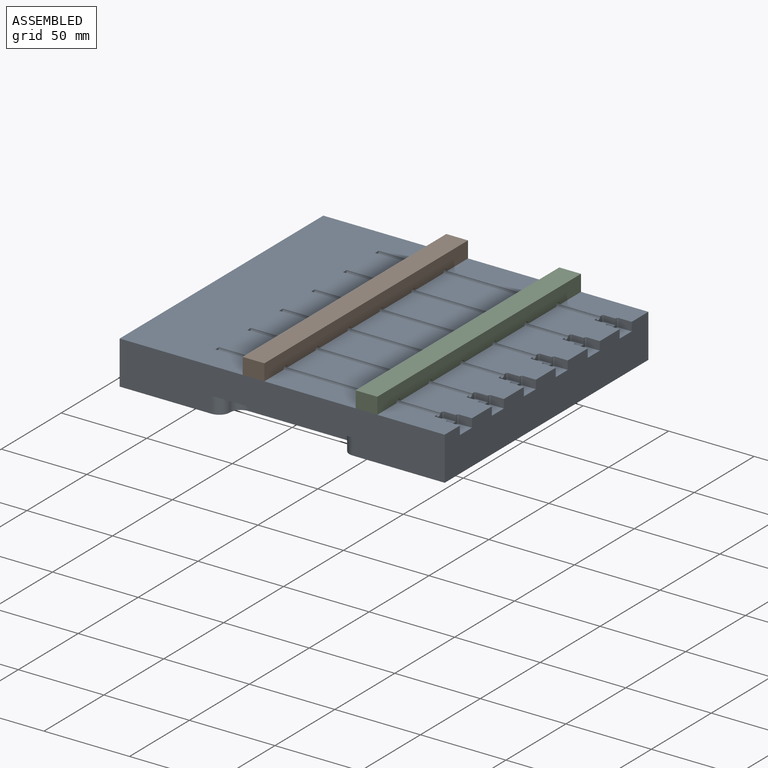
[diagram: assembled view]
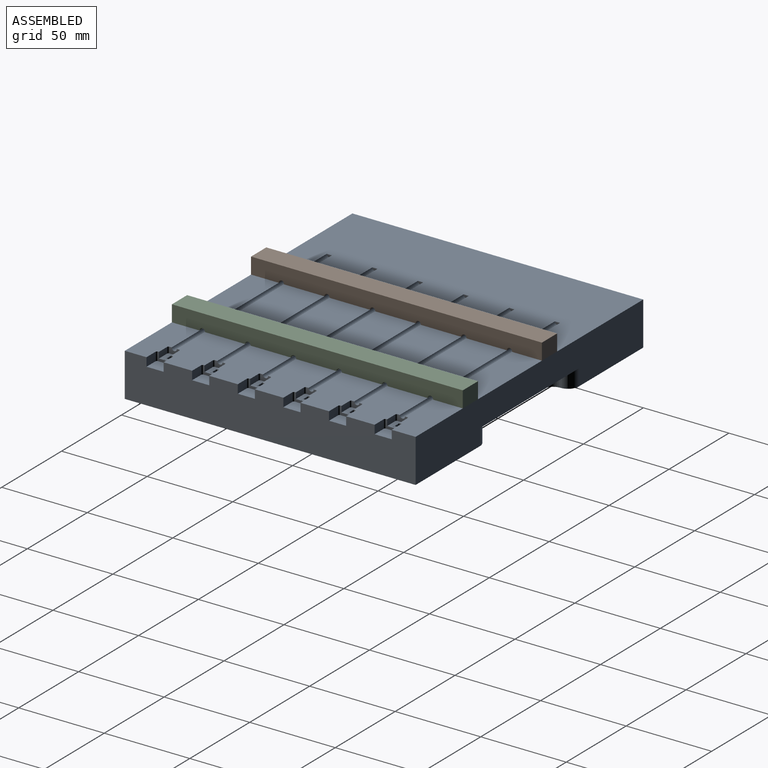
[diagram: assembled view, second angle]
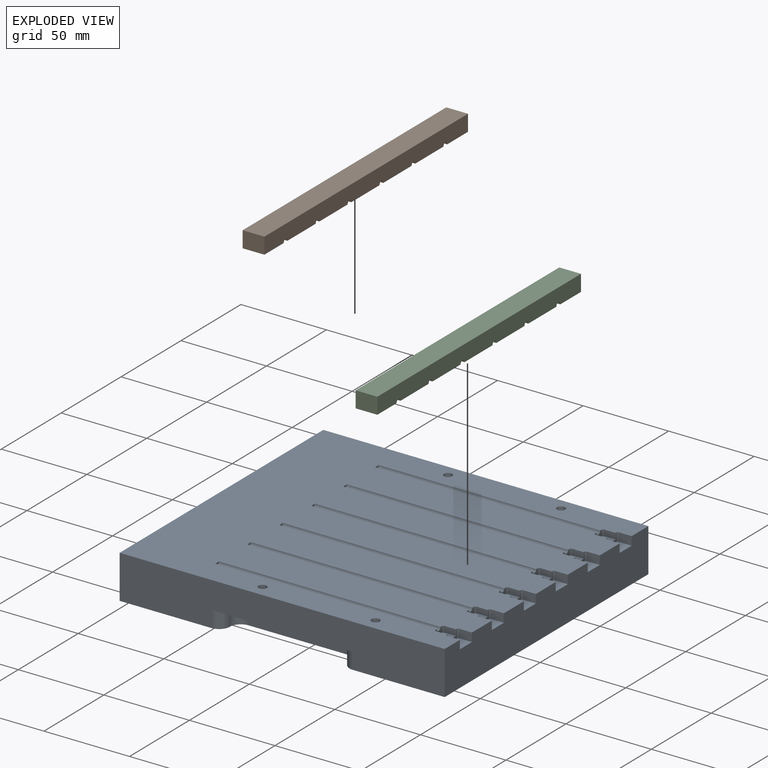
[diagram: exploded view]
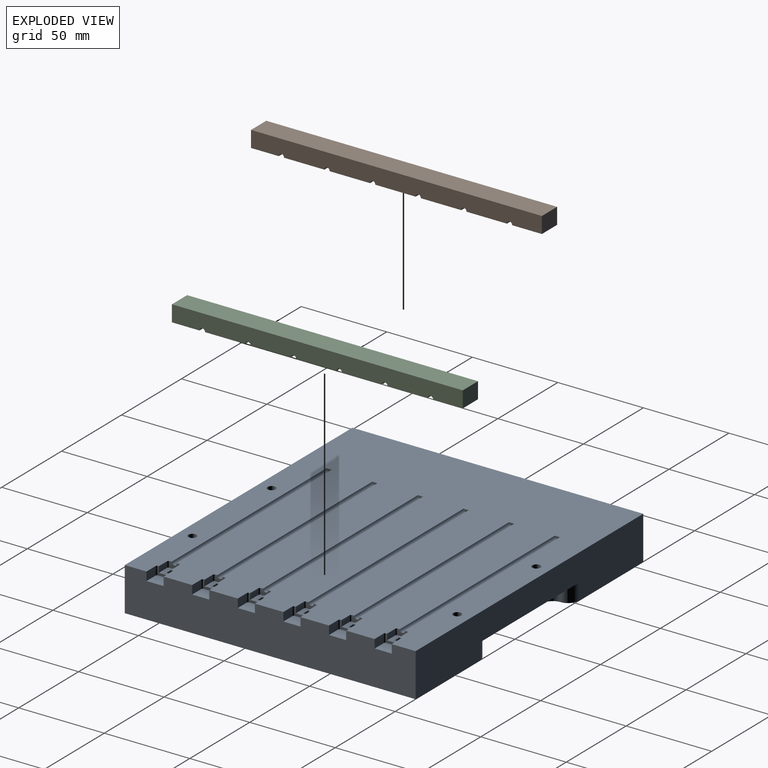
[diagram: exploded view, second angle]
ASSEMBLY  parts=3 mates=2
PART A: 190 faces, bbox 190x25.4x170 mm
  f0: plane 170x25.4mm, normal (1,0,0), area 4016mm2, adj f2,f3,f29,f30,f92,f93,f94,f115
  f1: plane 8.45x5.02mm, normal (1,0,0), area 17mm2, adj f10,f30,f60,f62,f92,f95,f96,f97
  f2: plane 190x25.4mm, normal (0,0,1), area 4039.7mm2, adj f0,f3,f28,f30,f81,f84,f87
  f3: plane 190x170mm, normal (0,1,0), area 30412.7mm2, adj f0,f2,f28,f29,f72,f74,f76,f78
  f4: plane 3.02x1.51mm, normal (1,0,0), area 3.6mm2, adj f30,f70
  f5: plane 3.02x1.51mm, normal (1,0,0), area 3.6mm2, adj f30,f71
  f6: plane 3.02x1.51mm, normal (1,0,0), area 3.6mm2, adj f30,f69
  f7: plane 3.02x1.51mm, normal (1,0,0), area 3.6mm2, adj f30,f68
  f8: plane 3.02x1.51mm, normal (1,0,0), area 3.6mm2, adj f30,f67
  f9: plane 3.02x1.51mm, normal (1,0,0), area 3.6mm2, adj f30,f65
  f10: plane 2.58x1.27mm, normal (0,-1,0), area 2.8mm2, adj f1,f60,f61,f62,f103,f104
  f11: plane 2.33x1.27mm, normal (0,-1,0), area 2.5mm2, adj f23,f60,f62,f63,f105,f106
  f12: plane 2.58x1.27mm, normal (0,-1,0), area 2.8mm2, adj f36,f55,f56,f57,f182,f183
  f13: plane 2.33x1.27mm, normal (0,-1,0), area 2.5mm2, adj f24,f55,f57,f58,f184,f185
  f14: plane 2.58x1.27mm, normal (0,-1,0), area 2.8mm2, adj f37,f50,f51,f52,f178,f179
  f15: plane 2.33x1.27mm, normal (0,-1,0), area 2.5mm2, adj f25,f50,f52,f53,f180,f181
  f16: plane 2.58x1.27mm, normal (0,-1,0), area 2.8mm2, adj f38,f45,f46,f47,f176,f177
  f17: plane 2.33x1.27mm, normal (0,-1,0), area 2.5mm2, adj f26,f45,f47,f48,f174,f175
  f18: plane 2.58x1.27mm, normal (0,-1,0), area 2.8mm2, adj f39,f40,f41,f42,f170,f171
  f19: plane 2.33x1.27mm, normal (0,-1,0), area 2.5mm2, adj f27,f40,f42,f43,f172,f173
  f20: plane 2.58x1.27mm, normal (0,-1,0), area 2.8mm2, adj f22,f31,f32,f33,f188,f189
  f21: plane 2.33x1.27mm, normal (0,-1,0), area 2.5mm2, adj f31,f33,f34,f66,f186,f187
  f22: plane 8.45x5.02mm, normal (1,0,0), area 17mm2, adj f20,f30,f31,f33,f115,f130,f135,f148
  f23: plane 5.65x3.56mm, normal (1,0,0), area 16.3mm2, adj f11,f30,f60,f62,f71,f96,f97,f99
  f24: plane 5.65x3.56mm, normal (1,0,0), area 16.3mm2, adj f13,f30,f55,f57,f70,f146,f156,f164
  f25: plane 5.65x3.56mm, normal (1,0,0), area 16.3mm2, adj f15,f30,f50,f52,f69,f144,f154,f163
  f26: plane 5.65x3.56mm, normal (1,0,0), area 16.3mm2, adj f17,f30,f45,f47,f68,f142,f152,f162
  f27: plane 5.65x3.56mm, normal (1,0,0), area 16.3mm2, adj f19,f30,f40,f42,f67,f140,f151,f161
  f28: plane 170x25.4mm, normal (-1,0,0), area 4318mm2, adj f2,f3,f29,f30
  f29: plane 190x25.4mm, normal (0,0,-1), area 4039.7mm2, adj f0,f3,f28,f30,f83,f89,f90
  f30: plane 190x170mm, normal (0,-1,0), area 29049.5mm2, adj f0,f1,f2,f4,f5,f6,f7,f8
  f31: plane 7.62x3.1mm, normal (0,0,1), area 8.7mm2, adj f20,f21,f22,f35,f66,f148,f186,f189
  f32: plane 3.05x0.48mm, normal (-1,0,0), area 1.5mm2, adj f20,f35,f188,f189
  f33: plane 7.62x3.1mm, normal (0,0,-1), area 8.7mm2, adj f20,f21,f22,f35,f66,f159,f187,f188
  f34: plane 3.05x0.48mm, normal (1,0,0), area 1.5mm2, adj f21,f35,f186,f187
  f35: plane 3.51x1.27mm, normal (0,-1,0), area 4.3mm2, adj f31,f32,f33,f34,f186,f187,f188,f189
  f36: plane 8.45x5.02mm, normal (1,0,0), area 17mm2, adj f12,f30,f55,f57,f123,f134,f139,f146
  f37: plane 8.45x5.02mm, normal (1,0,0), area 17mm2, adj f14,f30,f50,f52,f121,f133,f138,f144
  f38: plane 8.45x5.02mm, normal (1,0,0), area 17mm2, adj f16,f30,f45,f47,f119,f132,f137,f142
  f39: plane 8.45x5.02mm, normal (1,0,0), area 17mm2, adj f18,f30,f40,f42,f117,f131,f136,f140
  f40: plane 7.62x3.1mm, normal (0,0,1), area 8.7mm2, adj f18,f19,f27,f39,f44,f140,f170,f173
  f41: plane 3.05x0.48mm, normal (-1,0,0), area 1.5mm2, adj f18,f44,f170,f171
  f42: plane 7.62x3.1mm, normal (0,0,-1), area 8.7mm2, adj f18,f19,f27,f39,f44,f151,f171,f172
  f43: plane 3.05x0.48mm, normal (1,0,0), area 1.5mm2, adj f19,f44,f172,f173
  f44: plane 3.51x1.27mm, normal (0,-1,0), area 4.3mm2, adj f40,f41,f42,f43,f170,f171,f172,f173
  f45: plane 7.62x3.1mm, normal (0,0,1), area 8.7mm2, adj f16,f17,f26,f38,f49,f142,f174,f177
  f46: plane 3.05x0.48mm, normal (-1,0,0), area 1.5mm2, adj f16,f49,f176,f177
  f47: plane 7.62x3.1mm, normal (0,0,-1), area 8.7mm2, adj f16,f17,f26,f38,f49,f152,f175,f176
  f48: plane 3.05x0.48mm, normal (1,0,0), area 1.5mm2, adj f17,f49,f174,f175
  f49: plane 3.51x1.27mm, normal (0,-1,0), area 4.3mm2, adj f45,f46,f47,f48,f174,f175,f176,f177
  f50: plane 7.62x3.1mm, normal (0,0,1), area 8.7mm2, adj f14,f15,f25,f37,f54,f144,f178,f181
  f51: plane 3.05x0.48mm, normal (-1,0,0), area 1.5mm2, adj f14,f54,f178,f179
  f52: plane 7.62x3.1mm, normal (0,0,-1), area 8.7mm2, adj f14,f15,f25,f37,f54,f154,f179,f180
  f53: plane 3.05x0.48mm, normal (1,0,0), area 1.5mm2, adj f15,f54,f180,f181
  f54: plane 3.51x1.27mm, normal (0,-1,0), area 4.3mm2, adj f50,f51,f52,f53,f178,f179,f180,f181
  f55: plane 7.62x3.1mm, normal (0,0,1), area 8.7mm2, adj f12,f13,f24,f36,f59,f146,f182,f185
  f56: plane 3.05x0.48mm, normal (-1,0,0), area 1.5mm2, adj f12,f59,f182,f183
  f57: plane 7.62x3.1mm, normal (0,0,-1), area 8.7mm2, adj f12,f13,f24,f36,f59,f156,f183,f184
  f58: plane 3.05x0.48mm, normal (1,0,0), area 1.5mm2, adj f13,f59,f184,f185
  f59: plane 3.51x1.27mm, normal (0,-1,0), area 4.3mm2, adj f55,f56,f57,f58,f182,f183,f184,f185
  f60: plane 7.62x3.1mm, normal (0,0,1), area 8.7mm2, adj f1,f10,f11,f23,f64,f96,f103,f105
  f61: plane 3.05x0.48mm, normal (-1,0,0), area 1.5mm2, adj f10,f64,f103,f104
  f62: plane 7.62x3.1mm, normal (0,0,-1), area 8.7mm2, adj f1,f10,f11,f23,f64,f97,f104,f106
  f63: plane 3.05x0.48mm, normal (1,0,0), area 1.5mm2, adj f11,f64,f105,f106
  f64: plane 3.51x1.27mm, normal (0,-1,0), area 4.3mm2, adj f60,f61,f62,f63,f103,f104,f105,f106
  f65: cylinder r=1.51mm len=129.41mm, axis (1,0,0), area 614.4mm2, adj f9,f30,f66
  f66: plane 5.65x3.56mm, normal (1,0,0), area 16.3mm2, adj f21,f30,f31,f33,f65,f148,f159,f160
  f67: cylinder r=1.51mm len=129.41mm, axis (1,0,0), area 614.4mm2, adj f8,f27,f30
  f68: cylinder r=1.51mm len=129.41mm, axis (1,0,0), area 614.4mm2, adj f7,f26,f30
  f69: cylinder r=1.51mm len=129.41mm, axis (1,0,0), area 614.4mm2, adj f6,f25,f30
  f70: cylinder r=1.51mm len=129.41mm, axis (1,0,0), area 614.4mm2, adj f4,f24,f30
  f71: cylinder r=1.51mm len=129.41mm, axis (1,0,0), area 614.4mm2, adj f5,f23,f30
  f72: cylinder r=3mm len=6mm, axis (0,1,0), area 113.1mm2, adj f3,f73
  f73: plane 6x6mm, normal (0,1,0), area 28.3mm2, adj f72
  f74: cylinder r=3mm len=6mm, axis (0,1,0), area 113.1mm2, adj f3,f75
  f75: plane 6x6mm, normal (0,1,0), area 28.3mm2, adj f74
  f76: cylinder r=3mm len=6mm, axis (0,1,0), area 113.1mm2, adj f3,f77
  f77: plane 6x6mm, normal (0,1,0), area 28.3mm2, adj f76
  f78: cylinder r=3mm len=6mm, axis (0,1,0), area 113.1mm2, adj f3,f79
  f79: plane 6x6mm, normal (0,1,0), area 28.3mm2, adj f78
  f80: plane 57.15x9.53mm, normal (0,0,1), area 544.4mm2, adj f3,f81,f85,f86
  f81: plane 82.55x12.7mm, normal (0,1,0), area 887.1mm2, adj f2,f80,f84,f85,f86,f87
  f82: plane 57.15x9.53mm, normal (0,0,-1), area 544.4mm2, adj f3,f83,f88,f91
  f83: plane 82.55x12.7mm, normal (0,1,0), area 887.1mm2, adj f29,f82,f88,f89,f90,f91
  f84: cylinder r=6.35mm len=9.53mm, axis (0,-1,0), area 95mm2, adj f2,f3,f81,f85
  f85: cylinder r=6.35mm len=9.53mm, axis (0,1,0), area 95mm2, adj f3,f80,f81,f84
  f86: cylinder r=6.35mm len=9.53mm, axis (0,-1,0), area 95mm2, adj f3,f80,f81,f87
  f87: cylinder r=6.35mm len=9.53mm, axis (0,1,0), area 95mm2, adj f2,f3,f81,f86
  f88: cylinder r=6.35mm len=9.53mm, axis (0,1,0), area 95mm2, adj f3,f82,f83,f89
  f89: cylinder r=6.35mm len=9.53mm, axis (0,-1,0), area 95mm2, adj f3,f29,f83,f88
  f90: cylinder r=6.35mm len=9.53mm, axis (0,1,0), area 95mm2, adj f3,f29,f83,f91
  f91: cylinder r=6.35mm len=9.53mm, axis (0,-1,0), area 95mm2, adj f3,f82,f83,f90
  f92: plane 10.03x8.38mm, normal (0,-1,0), area 83.8mm2, adj f0,f1,f93,f94,f101,f102
  f93: plane 7.59x5.02mm, normal (0,0,-1), area 38.1mm2, adj f0,f30,f92,f102
  f94: plane 7.59x5.02mm, normal (0,0,1), area 38.1mm2, adj f0,f30,f92,f101
  f95: plane 6.83x3.5mm, normal (0,0,1), area 23.9mm2, adj f1,f30,f96,f99
  f96: plane 7.62x2.98mm, normal (0,-1,0), area 22.6mm2, adj f1,f23,f60,f95,f99
  f97: plane 7.62x2.98mm, normal (0,-1,0), area 22.6mm2, adj f1,f23,f62,f98,f100
  f98: plane 6.83x3.5mm, normal (0,0,-1), area 23.9mm2, adj f1,f30,f97,f100
  f99: cylinder r=0.79mm len=3.5mm, axis (0,-1,0), area 4.4mm2, adj f23,f30,f95,f96
  f100: cylinder r=0.79mm len=3.5mm, axis (0,1,0), area 4.4mm2, adj f23,f30,f97,f98
  f101: cylinder r=0.79mm len=5.02mm, axis (0,1,0), area 6.3mm2, adj f1,f30,f92,f94
  f102: cylinder r=0.79mm len=5.02mm, axis (0,-1,0), area 6.3mm2, adj f1,f30,f92,f93
  f103: cylinder r=0.4mm len=3.05mm, axis (0,-1,0), area 1.9mm2, adj f10,f60,f61,f64
  f104: cylinder r=0.4mm len=3.05mm, axis (0,-1,0), area 1.9mm2, adj f10,f61,f62,f64
  f105: cylinder r=0.4mm len=3.05mm, axis (0,-1,0), area 1.9mm2, adj f11,f60,f63,f64
  f106: cylinder r=0.4mm len=3.05mm, axis (0,-1,0), area 1.9mm2, adj f11,f62,f63,f64
  f107: cylinder r=2.38mm len=6.35mm, axis (0,-1,0), area 95mm2, adj f30,f108
  f108: plane 4.76x4.76mm, normal (0,-1,0), area 17.8mm2, adj f107
  f109: cylinder r=2.38mm len=6.35mm, axis (0,-1,0), area 95mm2, adj f30,f110
  f110: plane 4.76x4.76mm, normal (0,-1,0), area 17.8mm2, adj f109
  f111: cylinder r=2.38mm len=6.35mm, axis (0,-1,0), area 95mm2, adj f30,f112
  f112: plane 4.76x4.76mm, normal (0,-1,0), area 17.8mm2, adj f111
  f113: cylinder r=2.38mm len=6.35mm, axis (0,-1,0), area 95mm2, adj f30,f114
  f114: plane 4.76x4.76mm, normal (0,-1,0), area 17.8mm2, adj f113
  f115: plane 10.03x8.38mm, normal (0,-1,0), area 83.8mm2, adj f0,f22,f116,f125,f130,f135
  f116: plane 7.59x5.02mm, normal (0,0,1), area 38.1mm2, adj f0,f30,f115,f135
  f117: plane 10.03x8.38mm, normal (0,-1,0), area 83.8mm2, adj f0,f39,f118,f126,f131,f136
  f118: plane 7.59x5.02mm, normal (0,0,1), area 38.1mm2, adj f0,f30,f117,f136
  f119: plane 10.03x8.38mm, normal (0,-1,0), area 83.8mm2, adj f0,f38,f120,f127,f132,f137
  f120: plane 7.59x5.02mm, normal (0,0,1), area 38.1mm2, adj f0,f30,f119,f137
  f121: plane 10.03x8.38mm, normal (0,-1,0), area 83.8mm2, adj f0,f37,f122,f128,f133,f138
  f122: plane 7.59x5.02mm, normal (0,0,1), area 38.1mm2, adj f0,f30,f121,f138
  f123: plane 10.03x8.38mm, normal (0,-1,0), area 83.8mm2, adj f0,f36,f124,f129,f134,f139
  f124: plane 7.59x5.02mm, normal (0,0,1), area 38.1mm2, adj f0,f30,f123,f139
  f125: plane 7.59x5.02mm, normal (0,0,-1), area 38.1mm2, adj f0,f30,f115,f130
  f126: plane 7.59x5.02mm, normal (0,0,-1), area 38.1mm2, adj f0,f30,f117,f131
  f127: plane 7.59x5.02mm, normal (0,0,-1), area 38.1mm2, adj f0,f30,f119,f132
  f128: plane 7.59x5.02mm, normal (0,0,-1), area 38.1mm2, adj f0,f30,f121,f133
  f129: plane 7.59x5.02mm, normal (0,0,-1), area 38.1mm2, adj f0,f30,f123,f134
  f130: cylinder r=0.79mm len=5.02mm, axis (0,1,0), area 6.3mm2, adj f22,f30,f115,f125
  f131: cylinder r=0.79mm len=5.02mm, axis (0,1,0), area 6.3mm2, adj f30,f39,f117,f126
  f132: cylinder r=0.79mm len=5.02mm, axis (0,1,0), area 6.3mm2, adj f30,f38,f119,f127
  f133: cylinder r=0.79mm len=5.02mm, axis (0,1,0), area 6.3mm2, adj f30,f37,f121,f128
  f134: cylinder r=0.79mm len=5.02mm, axis (0,1,0), area 6.3mm2, adj f30,f36,f123,f129
  f135: cylinder r=0.79mm len=5.02mm, axis (0,-1,0), area 6.3mm2, adj f22,f30,f115,f116
  f136: cylinder r=0.79mm len=5.02mm, axis (0,-1,0), area 6.3mm2, adj f30,f39,f117,f118
  f137: cylinder r=0.79mm len=5.02mm, axis (0,-1,0), area 6.3mm2, adj f30,f38,f119,f120
  f138: cylinder r=0.79mm len=5.02mm, axis (0,-1,0), area 6.3mm2, adj f30,f37,f121,f122
  f139: cylinder r=0.79mm len=5.02mm, axis (0,-1,0), area 6.3mm2, adj f30,f36,f123,f124
  f140: plane 7.62x2.98mm, normal (0,-1,0), area 22.6mm2, adj f27,f39,f40,f141,f166
  f141: plane 6.83x3.5mm, normal (0,0,1), area 23.9mm2, adj f30,f39,f140,f166
  f142: plane 7.62x2.98mm, normal (0,-1,0), area 22.6mm2, adj f26,f38,f45,f143,f167
  f143: plane 6.83x3.5mm, normal (0,0,1), area 23.9mm2, adj f30,f38,f142,f167
  f144: plane 7.62x2.98mm, normal (0,-1,0), area 22.6mm2, adj f25,f37,f50,f145,f168
  f145: plane 6.83x3.5mm, normal (0,0,1), area 23.9mm2, adj f30,f37,f144,f168
  f146: plane 7.62x2.98mm, normal (0,-1,0), area 22.6mm2, adj f24,f36,f55,f147,f169
  f147: plane 6.83x3.5mm, normal (0,0,1), area 23.9mm2, adj f30,f36,f146,f169
  f148: plane 7.62x2.98mm, normal (0,-1,0), area 22.6mm2, adj f22,f31,f66,f149,f165
  f149: plane 6.83x3.5mm, normal (0,0,1), area 23.9mm2, adj f22,f30,f148,f165
  f150: plane 6.83x3.5mm, normal (0,0,-1), area 23.9mm2, adj f30,f39,f151,f161
  f151: plane 7.62x2.98mm, normal (0,-1,0), area 22.6mm2, adj f27,f39,f42,f150,f161
  f152: plane 7.62x2.98mm, normal (0,-1,0), area 22.6mm2, adj f26,f38,f47,f153,f162
  f153: plane 6.83x3.5mm, normal (0,0,-1), area 23.9mm2, adj f30,f38,f152,f162
  f154: plane 7.62x2.98mm, normal (0,-1,0), area 22.6mm2, adj f25,f37,f52,f155,f163
  f155: plane 6.83x3.5mm, normal (0,0,-1), area 23.9mm2, adj f30,f37,f154,f163
  f156: plane 7.62x2.98mm, normal (0,-1,0), area 22.6mm2, adj f24,f36,f57,f157,f164
  f157: plane 6.83x3.5mm, normal (0,0,-1), area 23.9mm2, adj f30,f36,f156,f164
  f158: plane 6.83x3.5mm, normal (0,0,-1), area 23.9mm2, adj f22,f30,f159,f160
  f159: plane 7.62x2.98mm, normal (0,-1,0), area 22.6mm2, adj f22,f33,f66,f158,f160
  f160: cylinder r=0.79mm len=3.5mm, axis (0,-1,0), area 4.4mm2, adj f30,f66,f158,f159
  f161: cylinder r=0.79mm len=3.5mm, axis (0,-1,0), area 4.4mm2, adj f27,f30,f150,f151
  f162: cylinder r=0.79mm len=3.5mm, axis (0,-1,0), area 4.4mm2, adj f26,f30,f152,f153
  f163: cylinder r=0.79mm len=3.5mm, axis (0,-1,0), area 4.4mm2, adj f25,f30,f154,f155
  f164: cylinder r=0.79mm len=3.5mm, axis (0,-1,0), area 4.4mm2, adj f24,f30,f156,f157
  f165: cylinder r=0.79mm len=3.5mm, axis (0,1,0), area 4.4mm2, adj f30,f66,f148,f149
  f166: cylinder r=0.79mm len=3.5mm, axis (0,1,0), area 4.4mm2, adj f27,f30,f140,f141
  f167: cylinder r=0.79mm len=3.5mm, axis (0,1,0), area 4.4mm2, adj f26,f30,f142,f143
  f168: cylinder r=0.79mm len=3.5mm, axis (0,1,0), area 4.4mm2, adj f25,f30,f144,f145
  f169: cylinder r=0.79mm len=3.5mm, axis (0,1,0), area 4.4mm2, adj f24,f30,f146,f147
  f170: cylinder r=0.4mm len=3.05mm, axis (0,-1,0), area 1.9mm2, adj f18,f40,f41,f44
  f171: cylinder r=0.4mm len=3.05mm, axis (0,-1,0), area 1.9mm2, adj f18,f41,f42,f44
  f172: cylinder r=0.4mm len=3.05mm, axis (0,-1,0), area 1.9mm2, adj f19,f42,f43,f44
  f173: cylinder r=0.4mm len=3.05mm, axis (0,-1,0), area 1.9mm2, adj f19,f40,f43,f44
  f174: cylinder r=0.4mm len=3.05mm, axis (0,-1,0), area 1.9mm2, adj f17,f45,f48,f49
  f175: cylinder r=0.4mm len=3.05mm, axis (0,-1,0), area 1.9mm2, adj f17,f47,f48,f49
  f176: cylinder r=0.4mm len=3.05mm, axis (0,-1,0), area 1.9mm2, adj f16,f46,f47,f49
  f177: cylinder r=0.4mm len=3.05mm, axis (0,-1,0), area 1.9mm2, adj f16,f45,f46,f49
  f178: cylinder r=0.4mm len=3.05mm, axis (0,-1,0), area 1.9mm2, adj f14,f50,f51,f54
  f179: cylinder r=0.4mm len=3.05mm, axis (0,-1,0), area 1.9mm2, adj f14,f51,f52,f54
  f180: cylinder r=0.4mm len=3.05mm, axis (0,-1,0), area 1.9mm2, adj f15,f52,f53,f54
  f181: cylinder r=0.4mm len=3.05mm, axis (0,-1,0), area 1.9mm2, adj f15,f50,f53,f54
  f182: cylinder r=0.4mm len=3.05mm, axis (0,-1,0), area 1.9mm2, adj f12,f55,f56,f59
  f183: cylinder r=0.4mm len=3.05mm, axis (0,-1,0), area 1.9mm2, adj f12,f56,f57,f59
  f184: cylinder r=0.4mm len=3.05mm, axis (0,-1,0), area 1.9mm2, adj f13,f57,f58,f59
  f185: cylinder r=0.4mm len=3.05mm, axis (0,-1,0), area 1.9mm2, adj f13,f55,f58,f59
  f186: cylinder r=0.4mm len=3.05mm, axis (0,-1,0), area 1.9mm2, adj f21,f31,f34,f35
  f187: cylinder r=0.4mm len=3.05mm, axis (0,-1,0), area 1.9mm2, adj f21,f33,f34,f35
  f188: cylinder r=0.4mm len=3.05mm, axis (0,-1,0), area 1.9mm2, adj f20,f32,f33,f35
  f189: cylinder r=0.4mm len=3.05mm, axis (0,-1,0), area 1.9mm2, adj f20,f31,f32,f35
PART B: 34 faces, bbox 12.7x170x9.5 mm
  f0: plane 12.7x0.22mm, normal (0,-1,0), area 2.8mm2, adj f17,f18,f20,f33
  f1: plane 12.7x0.22mm, normal (0,1,0), area 2.8mm2, adj f16,f18,f20,f33
  f2: plane 12.7x0.22mm, normal (0,1,0), area 2.8mm2, adj f15,f18,f20,f32
  f3: plane 12.7x0.22mm, normal (0,-1,0), area 2.8mm2, adj f16,f18,f20,f32
  f4: plane 12.7x0.22mm, normal (0,-1,0), area 2.8mm2, adj f15,f18,f20,f31
  f5: plane 12.7x0.22mm, normal (0,1,0), area 2.8mm2, adj f14,f18,f20,f31
  f6: plane 12.7x0.22mm, normal (0,-1,0), area 2.8mm2, adj f14,f18,f20,f30
  f7: plane 12.7x0.22mm, normal (0,1,0), area 2.8mm2, adj f13,f18,f20,f30
  f8: plane 12.7x0.22mm, normal (0,-1,0), area 2.8mm2, adj f13,f18,f20,f29
  f9: plane 12.7x0.22mm, normal (0,1,0), area 2.8mm2, adj f12,f18,f20,f29
  f10: plane 12.7x0.22mm, normal (0,-1,0), area 2.8mm2, adj f12,f18,f20,f28
  f11: plane 12.7x0.22mm, normal (0,1,0), area 2.8mm2, adj f18,f20,f23,f28
  f12: plane 23.65x12.7mm, normal (0,0,-1), area 300.3mm2, adj f9,f10,f18,f20
  f13: plane 23.65x12.7mm, normal (0,0,-1), area 300.3mm2, adj f7,f8,f18,f20
  f14: plane 23.65x12.7mm, normal (0,0,-1), area 300.3mm2, adj f5,f6,f18,f20
  f15: plane 23.65x12.7mm, normal (0,0,-1), area 300.3mm2, adj f2,f4,f18,f20
  f16: plane 23.65x12.7mm, normal (0,0,-1), area 300.3mm2, adj f1,f3,f18,f20
  f17: plane 16.21x12.7mm, normal (0,0,-1), area 186.2mm2, adj f0,f18,f19,f20,f26
  f18: plane 170x9.53mm, normal (1,0,0), area 1595.6mm2, adj f0,f1,f2,f3,f4,f5,f6,f7
  f19: plane 12.7x9.53mm, normal (0,1,0), area 121mm2, adj f17,f18,f20,f22
  f20: plane 170x9.53mm, normal (-1,0,0), area 1595.6mm2, adj f0,f1,f2,f3,f4,f5,f6,f7
  f21: plane 12.7x9.53mm, normal (0,-1,0), area 121mm2, adj f18,f20,f22,f23
  f22: plane 170x12.7mm, normal (0,0,1), area 2159mm2, adj f18,f19,f20,f21
  f23: plane 17.42x12.7mm, normal (0,0,-1), area 201.6mm2, adj f11,f18,f20,f21,f24
  f24: cylinder r=2.5mm len=6.35mm, axis (0,0,-1), area 99.7mm2, adj f23,f25
  f25: plane 5x5mm, normal (0,0,-1), area 19.6mm2, adj f24
  f26: cylinder r=2.5mm len=6.35mm, axis (0,0,-1), area 99.7mm2, adj f17,f27
  f27: plane 5x5mm, normal (0,0,-1), area 19.6mm2, adj f26
  f28: cylinder r=1.52mm len=12.7mm, axis (1,0,0), area 57.7mm2, adj f10,f11,f18,f20
  f29: cylinder r=1.52mm len=12.7mm, axis (1,0,0), area 57.7mm2, adj f8,f9,f18,f20
  f30: cylinder r=1.52mm len=12.7mm, axis (1,0,0), area 57.7mm2, adj f6,f7,f18,f20
  f31: cylinder r=1.52mm len=12.7mm, axis (1,0,0), area 57.7mm2, adj f4,f5,f18,f20
  f32: cylinder r=1.52mm len=12.7mm, axis (1,0,0), area 57.7mm2, adj f2,f3,f18,f20
  f33: cylinder r=1.52mm len=12.7mm, axis (1,0,0), area 57.7mm2, adj f0,f1,f18,f20
PART C: 22 faces, bbox 12.7x170x9.5 mm
  f0: plane 23.42x12.7mm, normal (0,0,-1), area 297.4mm2, adj f6,f8,f16,f17
  f1: plane 23.42x12.7mm, normal (0,0,-1), area 297.4mm2, adj f6,f8,f17,f18
  f2: plane 23.42x12.7mm, normal (0,0,-1), area 297.4mm2, adj f6,f8,f18,f19
  f3: plane 23.42x12.7mm, normal (0,0,-1), area 297.4mm2, adj f6,f8,f19,f20
  f4: plane 23.42x12.7mm, normal (0,0,-1), area 297.4mm2, adj f6,f8,f20,f21
  f5: plane 16.09x12.7mm, normal (0,0,-1), area 184.7mm2, adj f6,f7,f8,f14,f21
  f6: plane 170x9.53mm, normal (1,0,0), area 1594.3mm2, adj f0,f1,f2,f3,f4,f5,f7,f9
  f7: plane 12.7x9.53mm, normal (0,1,0), area 121mm2, adj f5,f6,f8,f10
  f8: plane 170x9.53mm, normal (-1,0,0), area 1594.3mm2, adj f0,f1,f2,f3,f4,f5,f7,f9
  f9: plane 12.7x9.53mm, normal (0,-1,0), area 121mm2, adj f6,f8,f10,f11
  f10: plane 170x12.7mm, normal (0,0,1), area 2159mm2, adj f6,f7,f8,f9
  f11: plane 17.31x12.7mm, normal (0,0,-1), area 200.2mm2, adj f6,f8,f9,f12,f16
  f12: cylinder r=2.5mm len=6.35mm, axis (0,0,-1), area 99.7mm2, adj f11,f13
  f13: plane 5x5mm, normal (0,0,-1), area 19.6mm2, adj f12
  f14: cylinder r=2.5mm len=6.35mm, axis (0,0,-1), area 99.7mm2, adj f5,f15
  f15: plane 5x5mm, normal (0,0,-1), area 19.6mm2, adj f14
  f16: cylinder r=1.63mm len=12.7mm, axis (1,0,0), area 64.9mm2, adj f0,f6,f8,f11
  f17: cylinder r=1.63mm len=12.7mm, axis (1,0,0), area 64.9mm2, adj f0,f1,f6,f8
  f18: cylinder r=1.63mm len=12.7mm, axis (1,0,0), area 64.9mm2, adj f1,f2,f6,f8
  f19: cylinder r=1.63mm len=12.7mm, axis (1,0,0), area 64.9mm2, adj f2,f3,f6,f8
  f20: cylinder r=1.63mm len=12.7mm, axis (1,0,0), area 64.9mm2, adj f3,f4,f6,f8
  f21: cylinder r=1.63mm len=12.7mm, axis (1,0,0), area 64.9mm2, adj f4,f5,f6,f8
PLACE A rot(axis=(-1,0,0),90deg) t=(-10.18,-80.14,75.6)mm
PLACE B rot(axis=(0,0,1),180deg) t=(-21.94,-80.14,101)mm
PLACE C rot(axis=(0,0,1),180deg) t=(44.1,-80.14,101)mm
MATE pin_slot B.f24 <-> A.f109  axis (0,0,-1) through (-21.94,-2.76,101)mm
MATE pin_slot C.f12 <-> A.f111  axis (0,0,-1) through (44.1,-2.76,101)mm
